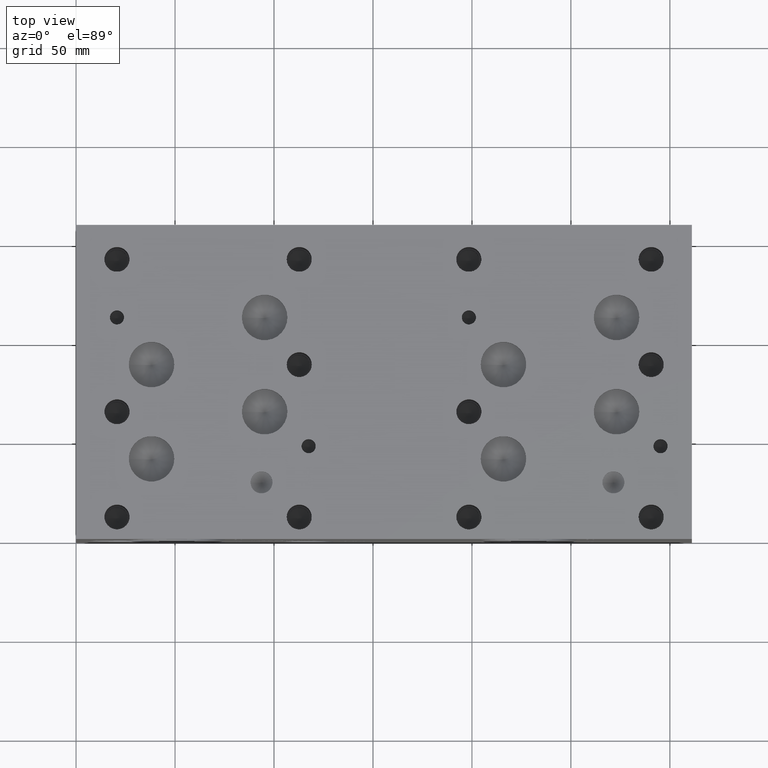
[diagram: clean part render]
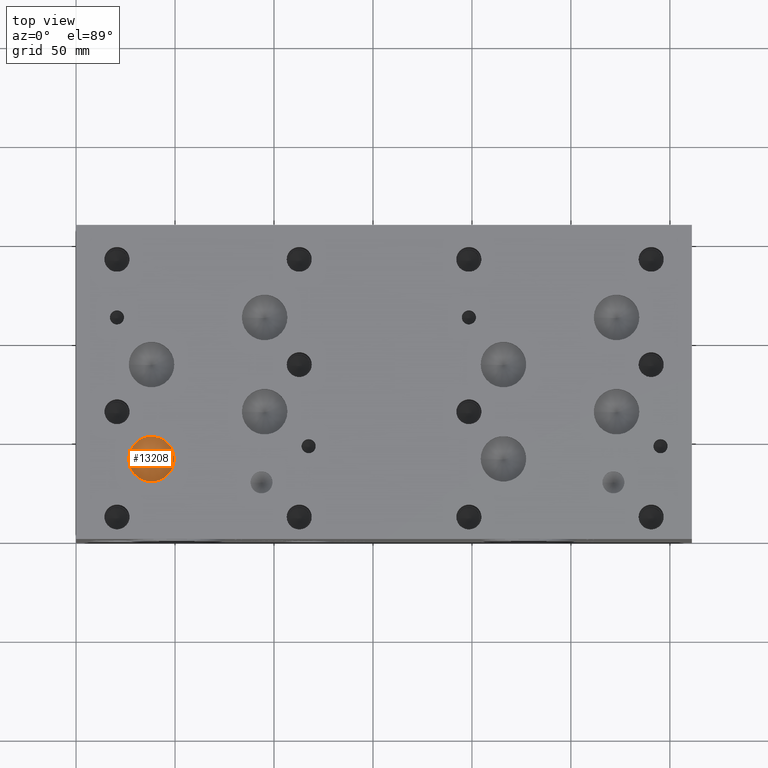
[diagram: same view with one face highlighted and labeled with its STEP entity id]
A machine part, top view. The second image highlights one B-rep face of the part: STEP entity #13208.
In plain terms, the highlighted conical surface has half-angle 60 deg.
Its self-contained STEP definition (entity closure, byte-faithful):
#173=CONICAL_SURFACE('',#14018,5.7531,1.0471975511966);
#446=CIRCLE('',#14019,11.5062);
#447=CIRCLE('',#14020,11.5062);
#1671=FACE_OUTER_BOUND('',#2450,.T.);
#2450=EDGE_LOOP('',(#11602,#11603,#11604,#11605));
#3671=LINE('',#22601,#4838);
#4838=VECTOR('',#16775,5.7531);
#6331=VERTEX_POINT('',#22597);
#6332=VERTEX_POINT('',#22598);
#6333=VERTEX_POINT('',#22600);
#8135=EDGE_CURVE('',#6331,#6332,#446,.T.);
#8136=EDGE_CURVE('',#6332,#6333,#3671,.T.);
#8137=EDGE_CURVE('',#6332,#6331,#447,.T.);
#11602=ORIENTED_EDGE('',*,*,#8135,.T.);
#11603=ORIENTED_EDGE('',*,*,#8136,.T.);
#11604=ORIENTED_EDGE('',*,*,#8136,.F.);
#11605=ORIENTED_EDGE('',*,*,#8137,.T.);
#13208=ADVANCED_FACE('',(#1671),#173,.F.);
#14018=AXIS2_PLACEMENT_3D('',#22596,#16771,#16772);
#14019=AXIS2_PLACEMENT_3D('',#22599,#16773,#16774);
#14020=AXIS2_PLACEMENT_3D('',#22602,#16776,#16777);
#16771=DIRECTION('center_axis',(0.,0.,1.));
#16772=DIRECTION('ref_axis',(1.,0.,0.));
#16773=DIRECTION('center_axis',(0.,0.,1.));
#16774=DIRECTION('ref_axis',(1.,0.,0.));
#16775=DIRECTION('',(0.866025403784439,1.06057523872491E-16,-0.5));
#16776=DIRECTION('center_axis',(0.,0.,1.));
#16777=DIRECTION('ref_axis',(1.,0.,0.));
#22596=CARTESIAN_POINT('Origin',(38.1,40.4622,110.685336166325));
#22597=CARTESIAN_POINT('',(49.6062,40.4622,114.00689));
#22598=CARTESIAN_POINT('',(26.5938,40.4622,114.00689));
#22599=CARTESIAN_POINT('Origin',(38.1,40.4622,114.00689));
#22600=CARTESIAN_POINT('',(38.1,40.4622,107.36378233265));
#22601=CARTESIAN_POINT('',(32.3469,40.4622,110.685336166325));
#22602=CARTESIAN_POINT('Origin',(38.1,40.4622,114.00689));